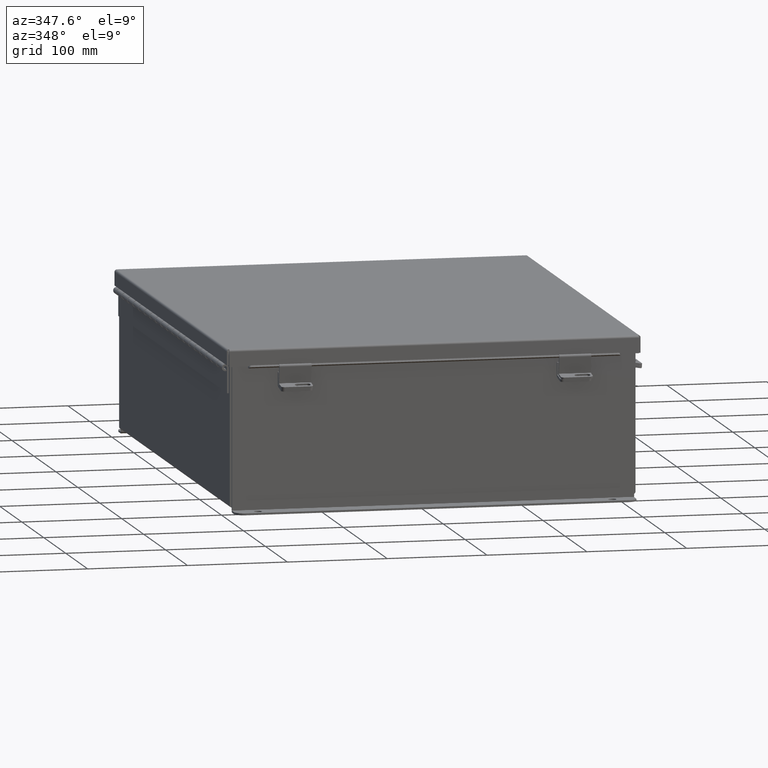
[diagram: clean part render]
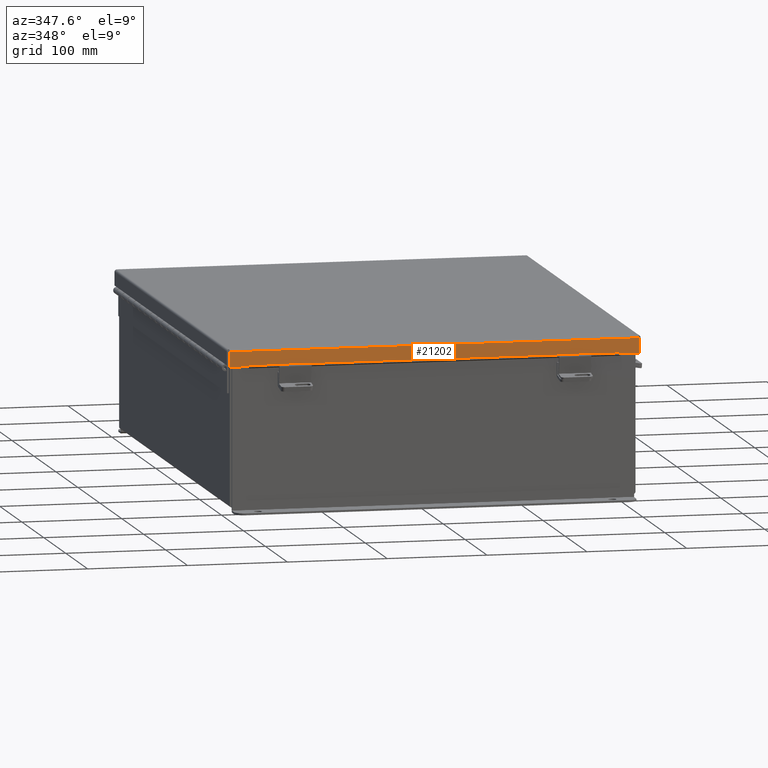
[diagram: same view with one face highlighted and labeled with its STEP entity id]
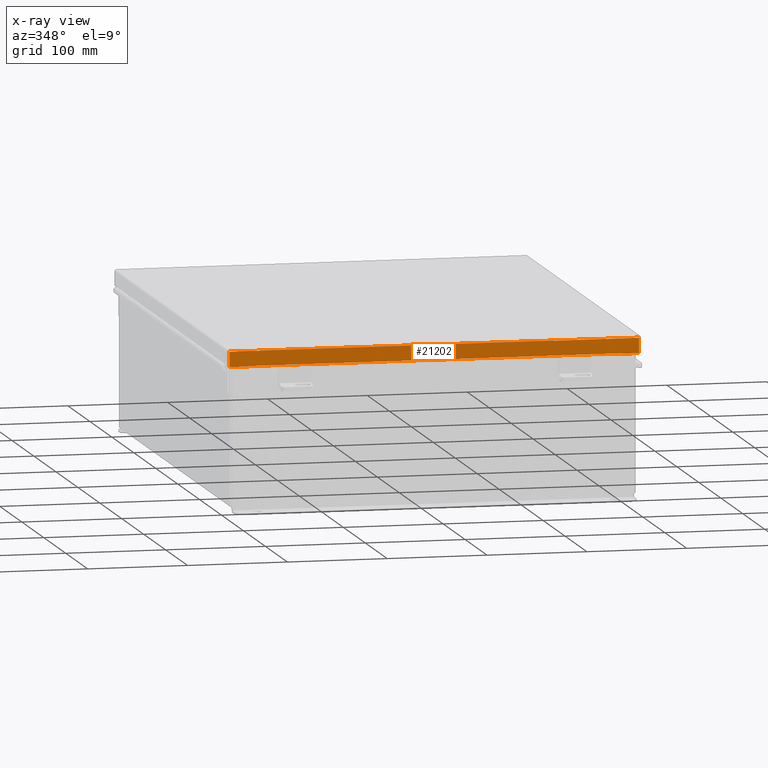
[diagram: x-ray of the same camera — body ghosted, the highlighted face saturated]
A machine part, auxiliary view. The second image highlights one B-rep face of the part: STEP entity #21202.
The next image is the same camera in x-ray: the body ghosted, the highlighted face saturated — about 0% of this face is hidden behind the body in this view.
In plain terms, the highlighted planar face has unit normal (0, 1, -0).
Its self-contained STEP definition (entity closure, byte-faithful):
#341 = VECTOR ( 'NONE', #16779, 39.37007874015748100 ) ;
#385 = EDGE_CURVE ( 'NONE', #5149, #7197, #2830, .T. ) ;
#970 = PLANE ( 'NONE',  #19788 ) ;
#1142 = ORIENTED_EDGE ( 'NONE', *, *, #385, .F. ) ;
#1199 = DIRECTION ( 'NONE',  ( -1.000000000000000000, -3.216520006922595800E-030, 4.186740220174584600E-018 ) ) ;
#1706 = CARTESIAN_POINT ( 'NONE',  ( -7.324478932188148100, -10.15625000000000400, 0.6122999999999982900 ) ) ;
#2412 = EDGE_LOOP ( 'NONE', ( #21617, #12057, #6223, #12261, #12144, #8247, #1142, #9408 ) ) ;
#2625 = CARTESIAN_POINT ( 'NONE',  ( 0.0000000000000000000, -10.15624999999999800, -3.606039351636827200E-014 ) ) ;
#2712 = DIRECTION ( 'NONE',  ( 3.183015112497910400E-030, 1.000000000000000000, 3.569293475308493700E-015 ) ) ;
#2830 = LINE ( 'NONE', #19209, #16614 ) ;
#3463 = VERTEX_POINT ( 'NONE', #6975 ) ;
#4184 = CARTESIAN_POINT ( 'NONE',  ( -8.074478932188169400, -10.15625000000000200, 0.6123000000000005100 ) ) ;
#4546 = EDGE_CURVE ( 'NONE', #16071, #21083, #13757, .T. ) ;
#4661 = CARTESIAN_POINT ( 'NONE',  ( -8.074478932188169400, -10.15624999999999800, 0.0000000000000000000 ) ) ;
#4910 = LINE ( 'NONE', #13726, #8437 ) ;
#4987 = CARTESIAN_POINT ( 'NONE',  ( -7.324478932188148100, -10.15625000000000200, 0.6123000000000005100 ) ) ;
#5149 = VERTEX_POINT ( 'NONE', #17896 ) ;
#5258 = DIRECTION ( 'NONE',  ( 0.0000000000000000000, -1.846427556282924300E-029, -1.000000000000000000 ) ) ;
#5398 = CARTESIAN_POINT ( 'NONE',  ( 3.201384367575308500E-018, -10.15625000000000200, 0.6123000000000005100 ) ) ;
#5768 = CARTESIAN_POINT ( 'NONE',  ( -7.324478932188148100, -10.15625000000000200, 0.5967115427318782100 ) ) ;
#6223 = ORIENTED_EDGE ( 'NONE', *, *, #10994, .F. ) ;
#6445 = CARTESIAN_POINT ( 'NONE',  ( -7.324478932188148100, -10.15625000000000400, 0.5967115427318782100 ) ) ;
#6975 = CARTESIAN_POINT ( 'NONE',  ( -8.074478932188169400, -10.15624999999999800, 0.01300000000000010700 ) ) ;
#7059 = CARTESIAN_POINT ( 'NONE',  ( 7.324478932188149800, -10.15625000000000200, 0.6123000000000005100 ) ) ;
#7197 = VERTEX_POINT ( 'NONE', #7059 ) ;
#7415 = EDGE_CURVE ( 'NONE', #20568, #8375, #4910, .T. ) ;
#8247 = ORIENTED_EDGE ( 'NONE', *, *, #14714, .T. ) ;
#8375 = VERTEX_POINT ( 'NONE', #14335 ) ;
#8437 = VECTOR ( 'NONE', #20066, 39.37007874015748100 ) ;
#8635 = VECTOR ( 'NONE', #20174, 39.37007874015748100 ) ;
#8764 = LINE ( 'NONE', #21927, #22032 ) ;
#9094 = DIRECTION ( 'NONE',  ( 7.009925220120346200E-014, 1.853823127269371600E-029, 1.000000000000000000 ) ) ;
#9142 = VECTOR ( 'NONE', #5258, 39.37007874015748100 ) ;
#9165 = EDGE_CURVE ( 'NONE', #16071, #18951, #13261, .T. ) ;
#9209 = VECTOR ( 'NONE', #21644, 39.37007874015748100 ) ;
#9408 = ORIENTED_EDGE ( 'NONE', *, *, #15957, .F. ) ;
#10994 = EDGE_CURVE ( 'NONE', #3463, #18951, #21906, .T. ) ;
#11230 = LINE ( 'NONE', #15243, #16316 ) ;
#12057 = ORIENTED_EDGE ( 'NONE', *, *, #9165, .T. ) ;
#12144 = ORIENTED_EDGE ( 'NONE', *, *, #7415, .T. ) ;
#12261 = ORIENTED_EDGE ( 'NONE', *, *, #22327, .F. ) ;
#13261 = LINE ( 'NONE', #5398, #9209 ) ;
#13623 = LINE ( 'NONE', #6445, #341 ) ;
#13726 = CARTESIAN_POINT ( 'NONE',  ( 8.074478932188169400, -10.15624999999999800, -3.606039351636827200E-014 ) ) ;
#13757 = LINE ( 'NONE', #1706, #9142 ) ;
#14136 = CARTESIAN_POINT ( 'NONE',  ( 8.074478932188169400, -10.15624999999999800, 0.01300000000000010700 ) ) ;
#14335 = CARTESIAN_POINT ( 'NONE',  ( 8.074478932188169400, -10.15625000000000200, 0.6123000000000005100 ) ) ;
#14714 = EDGE_CURVE ( 'NONE', #8375, #7197, #8764, .T. ) ;
#14813 = DIRECTION ( 'NONE',  ( 0.0000000000000000000, -3.569293475308493700E-015, 1.000000000000000000 ) ) ;
#15243 = CARTESIAN_POINT ( 'NONE',  ( -8.156250000000033800, -10.15624999999999800, 0.01299999999999901400 ) ) ;
#15957 = EDGE_CURVE ( 'NONE', #21083, #5149, #13623, .T. ) ;
#16071 = VERTEX_POINT ( 'NONE', #4987 ) ;
#16316 = VECTOR ( 'NONE', #20454, 39.37007874015748100 ) ;
#16614 = VECTOR ( 'NONE', #9094, 39.37007874015748100 ) ;
#16779 = DIRECTION ( 'NONE',  ( 1.000000000000000000, 3.215975411700707400E-030, -0.0000000000000000000 ) ) ;
#17896 = CARTESIAN_POINT ( 'NONE',  ( 7.324478932188148100, -10.15625000000000200, 0.5967115427318782100 ) ) ;
#18951 = VERTEX_POINT ( 'NONE', #4184 ) ;
#19074 = FACE_OUTER_BOUND ( 'NONE', #2412, .T. ) ;
#19209 = CARTESIAN_POINT ( 'NONE',  ( 7.324478932188148100, -10.15625000000000400, 0.5967115427318782100 ) ) ;
#19788 = AXIS2_PLACEMENT_3D ( 'NONE', #2625, #2712, #14813 ) ;
#20066 = DIRECTION ( 'NONE',  ( 0.0000000000000000000, -3.569293475308494500E-015, 1.000000000000000000 ) ) ;
#20174 = DIRECTION ( 'NONE',  ( -0.0000000000000000000, -3.569293475308494500E-015, 1.000000000000000000 ) ) ;
#20454 = DIRECTION ( 'NONE',  ( -1.000000000000000000, -3.191323508412550700E-030, -0.0000000000000000000 ) ) ;
#20568 = VERTEX_POINT ( 'NONE', #14136 ) ;
#21083 = VERTEX_POINT ( 'NONE', #5768 ) ;
#21202 = ADVANCED_FACE ( 'NONE', ( #19074 ), #970, .F. ) ;
#21617 = ORIENTED_EDGE ( 'NONE', *, *, #4546, .F. ) ;
#21644 = DIRECTION ( 'NONE',  ( -1.000000000000000000, -3.216520006922595800E-030, 4.186740220174584600E-018 ) ) ;
#21906 = LINE ( 'NONE', #4661, #8635 ) ;
#21927 = CARTESIAN_POINT ( 'NONE',  ( 3.201384367575308500E-018, -10.15625000000000200, 0.6123000000000005100 ) ) ;
#22032 = VECTOR ( 'NONE', #1199, 39.37007874015748100 ) ;
#22327 = EDGE_CURVE ( 'NONE', #20568, #3463, #11230, .T. ) ;